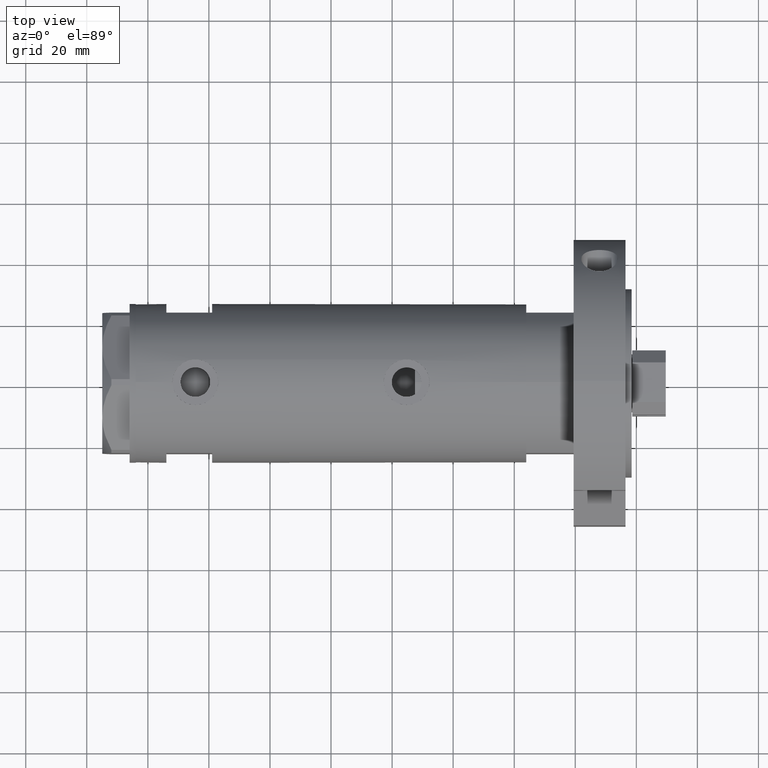
[diagram: clean part render]
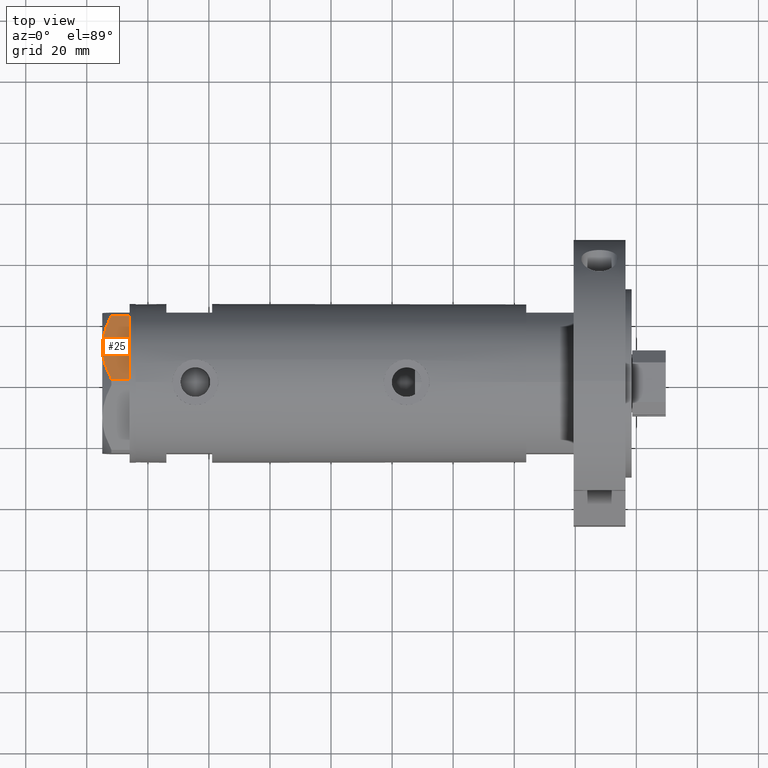
[diagram: same view with one face highlighted and labeled with its STEP entity id]
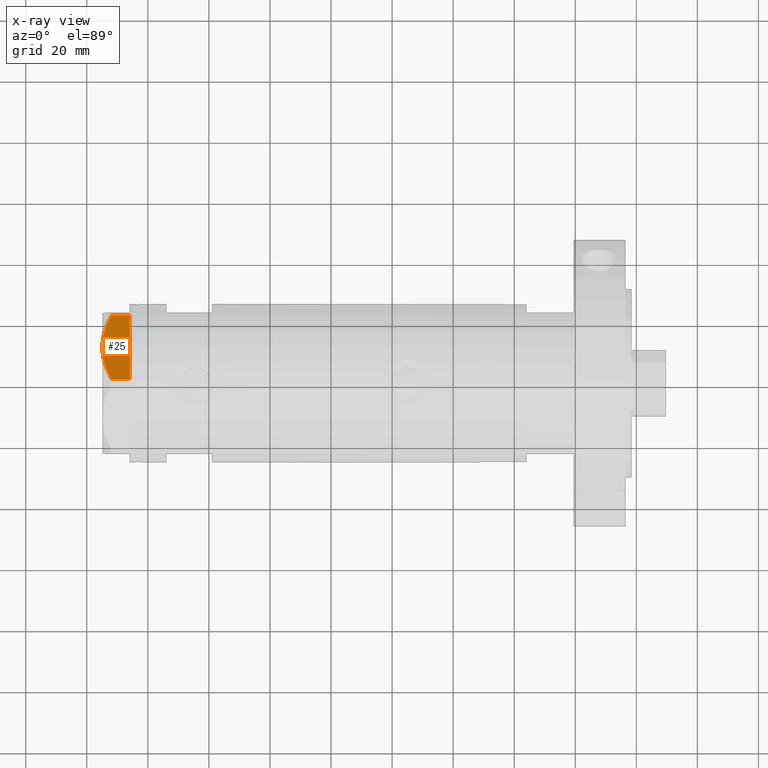
[diagram: x-ray of the same camera — body ghosted, the highlighted face saturated]
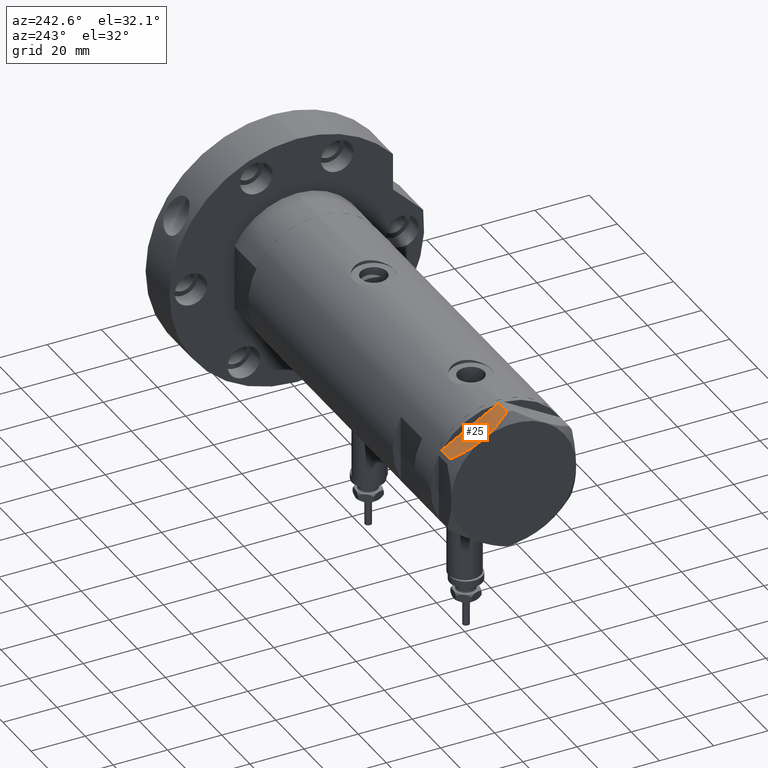
[diagram: same view with one face highlighted and labeled with its STEP entity id]
A machine part, top view. The second image highlights one B-rep face of the part: STEP entity #25.
The next image is the same camera in x-ray: the body ghosted, the highlighted face saturated — about 0% of this face is hidden behind the body in this view.
A second angle (auxiliary view) of the same face is appended — the face is thin or edge-on in the first view.
In plain terms, the highlighted planar face has unit normal (-0, -0.5, -0.866).
Its self-contained STEP definition (entity closure, byte-faithful):
#25 = ADVANCED_FACE ( 'NONE', ( #200 ), #872, .F. ) ;
#45 = CARTESIAN_POINT ( 'NONE',  ( 17.32831362639727146, -16.55360584591992890, 8.040681765829337024 ) ) ;
#200 = FACE_OUTER_BOUND ( 'NONE', #6948, .T. ) ;
#270 = ORIENTED_EDGE ( 'NONE', *, *, #997, .T. ) ;
#298 = DIRECTION ( 'NONE',  ( 0.8660254037844345998, 0.5000000000000069944, 0.000000000000000000 ) ) ;
#302 = CARTESIAN_POINT ( 'NONE',  ( 9.197898616903062319, -21.24770314027487572, 8.852712638955805957 ) ) ;
#543 = VECTOR ( 'NONE', #2780, 1000.000000000000000 ) ;
#581 = CARTESIAN_POINT ( 'NONE',  ( 0.9699484522387654684, -25.99811238272272718, 0.000000000000000000 ) ) ;
#612 = VECTOR ( 'NONE', #8608, 999.9999999999998863 ) ;
#801 = CARTESIAN_POINT ( 'NONE',  ( 9.656518383329995459, -20.98291889467261129, 8.907842277728439839 ) ) ;
#825 = CARTESIAN_POINT ( 'NONE',  ( 11.50000000000018296, -19.91858428704203732, 9.000000000000000000 ) ) ;
#850 = CARTESIAN_POINT ( 'NONE',  ( 22.03005154776152352, -13.83905619136116449, 5.983800287807632401 ) ) ;
#855 = CARTESIAN_POINT ( 'NONE',  ( 0.9699484522386233598, -25.99811238272281244, 5.983800287807552465 ) ) ;
#872 = PLANE ( 'NONE',  #3073 ) ;
#946 = CARTESIAN_POINT ( 'NONE',  ( 2.626494320835812690, -25.04170517956324460, 6.877782426143459915 ) ) ;
#997 = EDGE_CURVE ( 'NONE', #7519, #6294, #5880, .T. ) ;
#1121 = CARTESIAN_POINT ( 'NONE',  ( 11.50000000000018296, -19.91858428704203732, 9.000000000000000000 ) ) ;
#1128 = CARTESIAN_POINT ( 'NONE',  ( 0.9699484522386233598, -25.99811238272281244, 5.983800287807552465 ) ) ;
#1347 = CARTESIAN_POINT ( 'NONE',  ( 1.854543075583504180E-13, -26.55811238272274366, 0.000000000000000000 ) ) ;
#1383 = ORIENTED_EDGE ( 'NONE', *, *, #2228, .T. ) ;
#1436 = CARTESIAN_POINT ( 'NONE',  ( 20.35958612119336308, -14.80349985506228094, 6.844201024438393510 ) ) ;
#1461 = CARTESIAN_POINT ( 'NONE',  ( 1.000000000000106803, -25.98076211353316367, 0.000000000000000000 ) ) ;
#1530 = CARTESIAN_POINT ( 'NONE',  ( 21.20080365460326988, -14.31782268570101735, 6.431317509509397290 ) ) ;
#1690 = EDGE_CURVE ( 'NONE', #5517, #7519, #7172, .T. ) ;
#1786 = CARTESIAN_POINT ( 'NONE',  ( 10.58093321976977386, -20.44920774001120733, 8.981686407609503320 ) ) ;
#2056 = VECTOR ( 'NONE', #5177, 1000.000000000000000 ) ;
#2228 = EDGE_CURVE ( 'NONE', #2590, #4764, #2795, .T. ) ;
#2590 = VERTEX_POINT ( 'NONE', #7729 ) ;
#2654 = CARTESIAN_POINT ( 'NONE',  ( 22.03005154776152352, -13.83905619136116449, 9.000000000000000000 ) ) ;
#2780 = DIRECTION ( 'NONE',  ( 0.000000000000000000, 0.000000000000000000, 1.000000000000000000 ) ) ;
#2795 = LINE ( 'NONE', #6326, #4537 ) ;
#2847 = VERTEX_POINT ( 'NONE', #825 ) ;
#3073 = AXIS2_PLACEMENT_3D ( 'NONE', #6311, #8311, #5649 ) ;
#3589 = ORIENTED_EDGE ( 'NONE', *, *, #8646, .T. ) ;
#3812 = CARTESIAN_POINT ( 'NONE',  ( 11.04134848610953235, -20.18338686205092714, 9.000000000000095923 ) ) ;
#3843 = CARTESIAN_POINT ( 'NONE',  ( 0.9699484522387652463, -25.99811238272272718, 9.000000000000000000 ) ) ;
#3861 = CARTESIAN_POINT ( 'NONE',  ( 7.836767740116735048, -22.03355241838978884, 8.637313967156950767 ) ) ;
#4217 = ORIENTED_EDGE ( 'NONE', *, *, #4391, .F. ) ;
#4318 = ORIENTED_EDGE ( 'NONE', *, *, #1690, .T. ) ;
#4391 = EDGE_CURVE ( 'NONE', #2847, #4951, #7332, .T. ) ;
#4537 = VECTOR ( 'NONE', #7471, 999.9999999999998863 ) ;
#4764 = VERTEX_POINT ( 'NONE', #7631 ) ;
#4951 = VERTEX_POINT ( 'NONE', #5179 ) ;
#5177 = DIRECTION ( 'NONE',  ( 0.000000000000000000, 0.000000000000000000, -1.000000000000000000 ) ) ;
#5179 = CARTESIAN_POINT ( 'NONE',  ( 22.03005154776152352, -13.83905619136116449, 5.983800287807632401 ) ) ;
#5412 = CARTESIAN_POINT ( 'NONE',  ( 13.32175508098997518, -18.86679350063488059, 9.000000000000094147 ) ) ;
#5517 = VERTEX_POINT ( 'NONE', #1128 ) ;
#5537 = CARTESIAN_POINT ( 'NONE',  ( 11.50000000000018296, -19.91858428704203732, 9.000000000000000000 ) ) ;
#5649 = DIRECTION ( 'NONE',  ( -0.8660254037844344888, -0.5000000000000069944, 0.000000000000000000 ) ) ;
#5738 = ORIENTED_EDGE ( 'NONE', *, *, #6939, .T. ) ;
#5880 = LINE ( 'NONE', #1347, #612 ) ;
#6077 = B_SPLINE_CURVE_WITH_KNOTS ( 'NONE', 3,
 ( #855, #946, #6248, #7188, #3861, #302, #801, #1786, #3812, #1121 ),
 .UNSPECIFIED., .F., .F.,
 ( 4, 2, 2, 2, 4 ),
 ( 0.001228959670438524313, 0.007497079744270824901, 0.01063113978118697747, 0.01219816979964504985, 0.01376519981810312224 ),
 .UNSPECIFIED. ) ;
#6248 = CARTESIAN_POINT ( 'NONE',  ( 4.320186229910052411, -24.06385169993491857, 7.629374868826107381 ) ) ;
#6294 = VERTEX_POINT ( 'NONE', #1461 ) ;
#6311 = CARTESIAN_POINT ( 'NONE',  ( 1.854543075583504180E-13, -26.55811238272274366, 9.000000000000000000 ) ) ;
#6326 = CARTESIAN_POINT ( 'NONE',  ( 1.854543075583504180E-13, -26.55811238272274366, 0.000000000000000000 ) ) ;
#6623 = EDGE_CURVE ( 'NONE', #5517, #2847, #6077, .T. ) ;
#6896 = LINE ( 'NONE', #7031, #8110 ) ;
#6939 = EDGE_CURVE ( 'NONE', #6294, #2590, #6896, .T. ) ;
#6948 = EDGE_LOOP ( 'NONE', ( #7143, #4318, #270, #5738, #1383, #3589, #4217 ) ) ;
#7031 = CARTESIAN_POINT ( 'NONE',  ( 1.854543075583504180E-13, -26.55811238272274366, 0.000000000000000000 ) ) ;
#7143 = ORIENTED_EDGE ( 'NONE', *, *, #6623, .F. ) ;
#7172 = LINE ( 'NONE', #3843, #2056 ) ;
#7188 = CARTESIAN_POINT ( 'NONE',  ( 6.946777556903783513, -22.54738849024392877, 8.426899937603783641 ) ) ;
#7274 = LINE ( 'NONE', #2654, #543 ) ;
#7332 = B_SPLINE_CURVE_WITH_KNOTS ( 'NONE', 3,
 ( #5537, #5412, #8172, #45, #8248, #8208, #7368, #1436, #1530, #850 ),
 .UNSPECIFIED., .F., .F.,
 ( 4, 2, 2, 2, 4 ),
 ( 0.01376519981810312224, 0.01998941321701588197, 0.02154546656674407104, 0.02310151991647226011, 0.02621362661592864518 ),
 .UNSPECIFIED. ) ;
#7368 = CARTESIAN_POINT ( 'NONE',  ( 19.07486218897004093, -15.54523556316577704, 7.397272853991418096 ) ) ;
#7471 = DIRECTION ( 'NONE',  ( 0.8660254037844345998, 0.5000000000000069944, 0.000000000000000000 ) ) ;
#7519 = VERTEX_POINT ( 'NONE', #581 ) ;
#7631 = CARTESIAN_POINT ( 'NONE',  ( 22.03005154776152708, -13.83905619136116449, 0.000000000000000000 ) ) ;
#7729 = CARTESIAN_POINT ( 'NONE',  ( 22.00000000000017053, -13.85640646055075464, 0.000000000000000000 ) ) ;
#8110 = VECTOR ( 'NONE', #298, 999.9999999999998863 ) ;
#8172 = CARTESIAN_POINT ( 'NONE',  ( 15.11535457301044261, -17.83125835109846591, 8.707651728477005193 ) ) ;
#8208 = CARTESIAN_POINT ( 'NONE',  ( 18.64279229058404752, -15.79469123530767227, 7.570552255229726413 ) ) ;
#8248 = CARTESIAN_POINT ( 'NONE',  ( 17.77001848220201907, -16.29858742851870090, 7.892128867758446908 ) ) ;
#8311 = DIRECTION ( 'NONE',  ( -0.5000000000000071054, 0.8660254037844345998, 0.000000000000000000 ) ) ;
#8608 = DIRECTION ( 'NONE',  ( 0.8660254037844345998, 0.5000000000000069944, 0.000000000000000000 ) ) ;
#8646 = EDGE_CURVE ( 'NONE', #4764, #4951, #7274, .T. ) ;